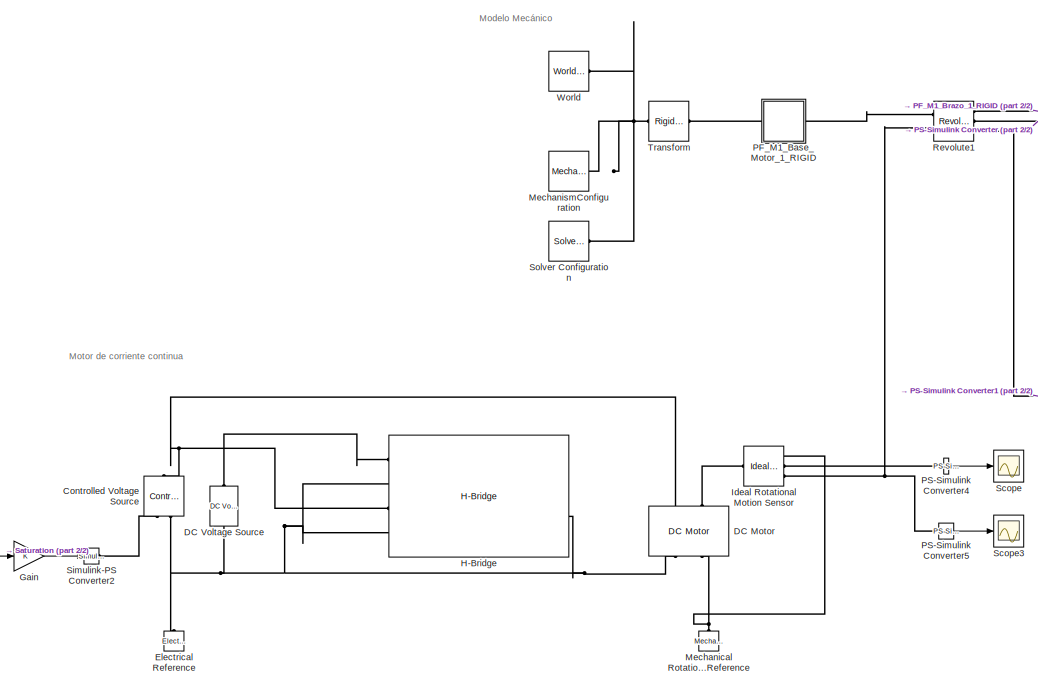
[diagram: root canvas - part 1/2, left side, full height]
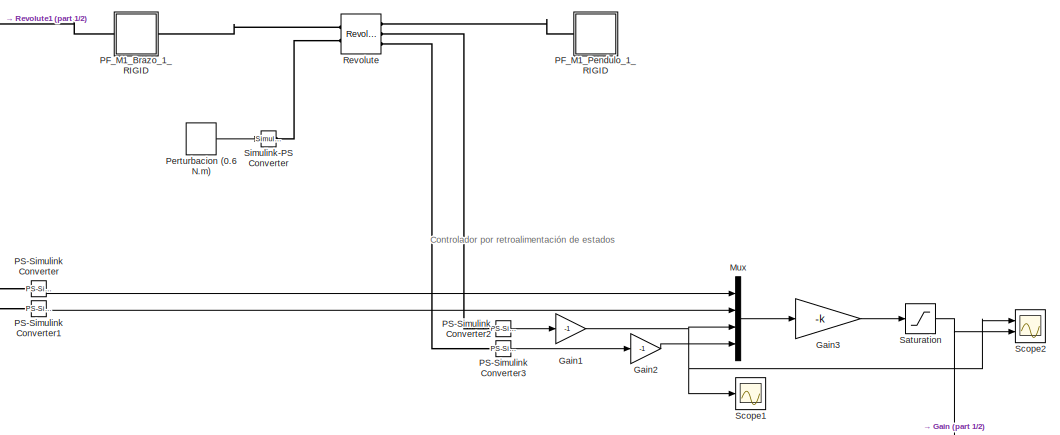
[diagram: root canvas - part 2/2, middle right region]
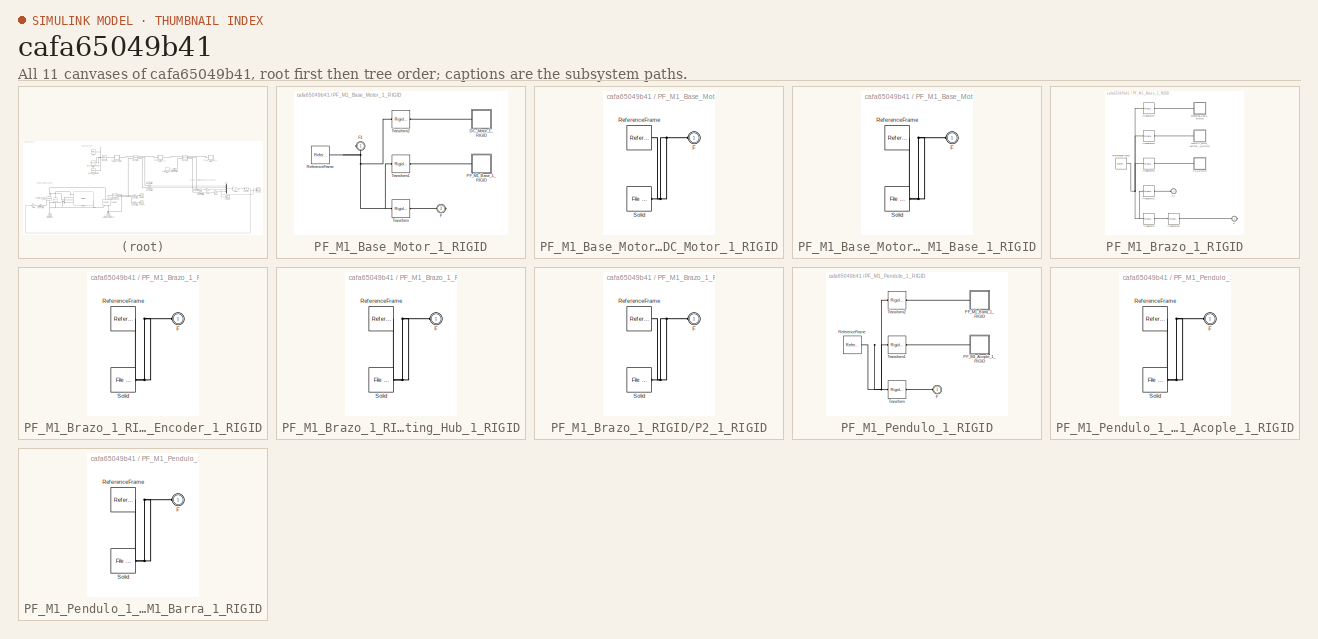
[diagram: thumbnail index - all 11 canvases of the model, root first then tree order]
MODEL slx_cafa65049b41
KIND model
CONFIG AbsTol = auto
CONFIG EnableMultiTasking = off
CONFIG FixedStep = auto
CONFIG MaxStep = 1e-3
CONFIG MinStep = auto
CONFIG RelTol = 1e-3
CONFIG SampleTimeConstraint = Unconstrained
CONFIG SolverName = VariableStepAuto
CONFIG StartTime = 0.0
CONFIG StopTime = 10
WORKSPACE source: external: MATLAB File  (data not in archive)
BLOCK [Reference] Controlled Voltage Source  REF=fl_lib/Electrical/Electrical Sources/Controlled Voltage
Source
  NameLocation = right
  Ports = [0, 0, 0, 0, 0, 1, 2]
  SourceBlock = fl_lib/Electrical/Electrical Sources/Controlled Voltage\nSource
  SourceProductBaseCode = SS
  SourceType = Controlled Voltage\nSource
BLOCK [Reference] DC Motor  REF=ee_lib/Electromechanical/Brushed Motors/DC Motor
  NameLocation = right
  Ports = [0, 0, 0, 0, 0, 2, 2]
  SourceBlock = ee_lib/Electromechanical/Brushed Motors/DC Motor
  SourceProductBaseCode = PS
  SourceType = DC Motor
BLOCK [Reference] DC Voltage Source  REF=ee_lib/Additional
Components/SPICE Sources/DC Voltage Source
  NameLocation = right
  Ports = [0, 0, 0, 0, 0, 1, 1]
  SourceBlock = ee_lib/Additional\nComponents/SPICE Sources/DC Voltage Source
  SourceProductBaseCode = PS
  SourceType = DC Voltage Source
BLOCK [Reference] Electrical Reference  REF=fl_lib/Electrical/Electrical Elements/Electrical Reference
  NameLocation = right
  Ports = [0, 0, 0, 0, 0, 1]
  SourceBlock = fl_lib/Electrical/Electrical Elements/Electrical Reference
  SourceProductBaseCode = SS
  SourceType = Electrical Reference
BLOCK [Gain] Gain
BLOCK [Gain] Gain1
  Gain = -1
BLOCK [Gain] Gain2
  Gain = -1
BLOCK [Gain] Gain3
  Gain = -k
  Multiplication = Matrix(K*u) (u vector)
BLOCK [Reference] H-Bridge  REF=ee_lib/Semiconductors &
Converters/Converters/H-Bridge
  Ports = [0, 0, 0, 0, 0, 4, 2]
  SourceBlock = ee_lib/Semiconductors &\nConverters/Converters/H-Bridge
  SourceProductBaseCode = PS
  SourceType = H-Bridge
BLOCK [Reference] Ideal Rotational Motion Sensor  REF=fl_lib/Mechanical/Mechanical Sensors/Ideal Rotational
Motion Sensor
  Ports = [0, 0, 0, 0, 0, 1, 3]
  SourceBlock = fl_lib/Mechanical/Mechanical Sensors/Ideal Rotational\nMotion Sensor
  SourceProductBaseCode = SS
  SourceType = Ideal Rotational\nMotion Sensor
BLOCK [Reference] Mechanical Rotational Reference  REF=fl_lib/Mechanical/Rotational Elements/Mechanical
Rotational Reference
  NameLocation = right
  Ports = [0, 0, 0, 0, 0, 1]
  SourceBlock = fl_lib/Mechanical/Rotational Elements/Mechanical\nRotational Reference
  SourceProductBaseCode = SS
  SourceType = Mechanical\nRotational Reference
BLOCK [Reference] MechanismConfiguration  REF=sm_lib/Utilities/Mechanism
Configuration
  Ports = [0, 0, 0, 0, 0, 0, 1]
  SourceBlock = sm_lib/Utilities/Mechanism\nConfiguration
  SourceProductBaseCode = MS
  SourceType = Mechanism\nConfiguration
BLOCK [Mux] Mux
  DisplayOption = bar
  Ports = [4, 1]
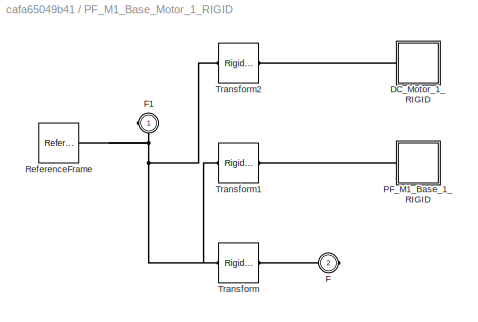
BLOCK [SubSystem] PF_M1_Base_Motor_1_RIGID
  Ports = [0, 0, 0, 0, 0, 1, 1]
  RequestExecContextInheritance = off
BLOCK [SubSystem] PF_M1_Base_Motor_1_RIGID/DC_Motor_1_RIGID
  Ports = [0, 0, 0, 0, 0, 1]
  RequestExecContextInheritance = off
BLOCK [PMIOPort] PF_M1_Base_Motor_1_RIGID/DC_Motor_1_RIGID/F
  Side = Left
BLOCK [Reference] PF_M1_Base_Motor_1_RIGID/DC_Motor_1_RIGID/ReferenceFrame  REF=sm_lib/Frames and
Transforms/Reference
Frame
  Ports = [0, 0, 0, 0, 0, 0, 1]
  SourceBlock = sm_lib/Frames and\nTransforms/Reference\nFrame
  SourceProductBaseCode = MS
  SourceType = Reference\nFrame
BLOCK [Reference] PF_M1_Base_Motor_1_RIGID/DC_Motor_1_RIGID/Solid  REF=sm_lib/Body Elements/File Solid
  Ports = [0, 0, 0, 0, 0, 0, 1]
  SourceBlock = sm_lib/Body Elements/File Solid
  SourceProductBaseCode = MS
  SourceType = File Solid
BLOCK [PMIOPort] PF_M1_Base_Motor_1_RIGID/F
  Port = 2
  Side = Right
BLOCK [PMIOPort] PF_M1_Base_Motor_1_RIGID/F1
  Side = Left
BLOCK [SubSystem] PF_M1_Base_Motor_1_RIGID/PF_M1_Base_1_RIGID
  Ports = [0, 0, 0, 0, 0, 1]
  RequestExecContextInheritance = off
BLOCK [PMIOPort] PF_M1_Base_Motor_1_RIGID/PF_M1_Base_1_RIGID/F
  Side = Left
BLOCK [Reference] PF_M1_Base_Motor_1_RIGID/PF_M1_Base_1_RIGID/ReferenceFrame  REF=sm_lib/Frames and
Transforms/Reference
Frame
  Ports = [0, 0, 0, 0, 0, 0, 1]
  SourceBlock = sm_lib/Frames and\nTransforms/Reference\nFrame
  SourceProductBaseCode = MS
  SourceType = Reference\nFrame
BLOCK [Reference] PF_M1_Base_Motor_1_RIGID/PF_M1_Base_1_RIGID/Solid  REF=sm_lib/Body Elements/File Solid
  Ports = [0, 0, 0, 0, 0, 0, 1]
  SourceBlock = sm_lib/Body Elements/File Solid
  SourceProductBaseCode = MS
  SourceType = File Solid
BLOCK [Reference] PF_M1_Base_Motor_1_RIGID/ReferenceFrame  REF=sm_lib/Frames and
Transforms/Reference
Frame
  Ports = [0, 0, 0, 0, 0, 0, 1]
  SourceBlock = sm_lib/Frames and\nTransforms/Reference\nFrame
  SourceProductBaseCode = MS
  SourceType = Reference\nFrame
BLOCK [Reference] PF_M1_Base_Motor_1_RIGID/Transform  REF=sm_lib/Frames and
Transforms/Rigid
Transform
  Ports = [0, 0, 0, 0, 0, 1, 1]
  SourceBlock = sm_lib/Frames and\nTransforms/Rigid\nTransform
  SourceProductBaseCode = MS
  SourceType = Rigid\nTransform
BLOCK [Reference] PF_M1_Base_Motor_1_RIGID/Transform1  REF=sm_lib/Frames and
Transforms/Rigid
Transform
  Ports = [0, 0, 0, 0, 0, 1, 1]
  SourceBlock = sm_lib/Frames and\nTransforms/Rigid\nTransform
  SourceProductBaseCode = MS
  SourceType = Rigid\nTransform
BLOCK [Reference] PF_M1_Base_Motor_1_RIGID/Transform2  REF=sm_lib/Frames and
Transforms/Rigid
Transform
  Ports = [0, 0, 0, 0, 0, 1, 1]
  SourceBlock = sm_lib/Frames and\nTransforms/Rigid\nTransform
  SourceProductBaseCode = MS
  SourceType = Rigid\nTransform
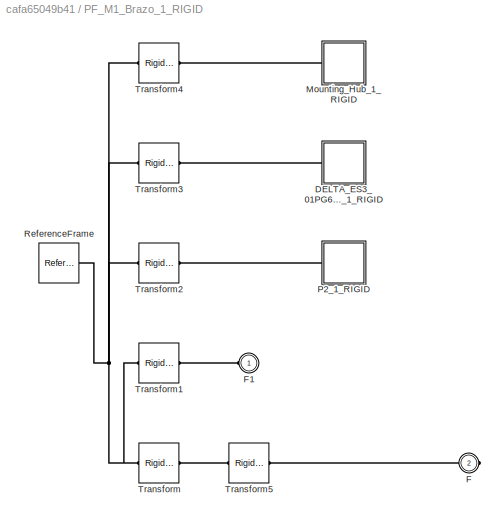
BLOCK [SubSystem] PF_M1_Brazo_1_RIGID
  Ports = [0, 0, 0, 0, 0, 1, 1]
  RequestExecContextInheritance = off
BLOCK [SubSystem] PF_M1_Brazo_1_RIGID/DELTA_ES3_01PG6941_Incremental_Rotary_Encoder_1_RIGID
  Ports = [0, 0, 0, 0, 0, 1]
  RequestExecContextInheritance = off
BLOCK [PMIOPort] PF_M1_Brazo_1_RIGID/DELTA_ES3_01PG6941_Incremental_Rotary_Encoder_1_RIGID/F
  Side = Left
BLOCK [Reference] PF_M1_Brazo_1_RIGID/DELTA_ES3_01PG6941_Incremental_Rotary_Encoder_1_RIGID/ReferenceFrame  REF=sm_lib/Frames and
Transforms/Reference
Frame
  Ports = [0, 0, 0, 0, 0, 0, 1]
  SourceBlock = sm_lib/Frames and\nTransforms/Reference\nFrame
  SourceProductBaseCode = MS
  SourceType = Reference\nFrame
BLOCK [Reference] PF_M1_Brazo_1_RIGID/DELTA_ES3_01PG6941_Incremental_Rotary_Encoder_1_RIGID/Solid  REF=sm_lib/Body Elements/File Solid
  Ports = [0, 0, 0, 0, 0, 0, 1]
  SourceBlock = sm_lib/Body Elements/File Solid
  SourceProductBaseCode = MS
  SourceType = File Solid
BLOCK [PMIOPort] PF_M1_Brazo_1_RIGID/F
  Port = 2
  Side = Right
BLOCK [PMIOPort] PF_M1_Brazo_1_RIGID/F1
  Side = Left
BLOCK [SubSystem] PF_M1_Brazo_1_RIGID/Mounting_Hub_1_RIGID
  Ports = [0, 0, 0, 0, 0, 1]
  RequestExecContextInheritance = off
BLOCK [PMIOPort] PF_M1_Brazo_1_RIGID/Mounting_Hub_1_RIGID/F
  Side = Left
BLOCK [Reference] PF_M1_Brazo_1_RIGID/Mounting_Hub_1_RIGID/ReferenceFrame  REF=sm_lib/Frames and
Transforms/Reference
Frame
  Ports = [0, 0, 0, 0, 0, 0, 1]
  SourceBlock = sm_lib/Frames and\nTransforms/Reference\nFrame
  SourceProductBaseCode = MS
  SourceType = Reference\nFrame
BLOCK [Reference] PF_M1_Brazo_1_RIGID/Mounting_Hub_1_RIGID/Solid  REF=sm_lib/Body Elements/File Solid
  Ports = [0, 0, 0, 0, 0, 0, 1]
  SourceBlock = sm_lib/Body Elements/File Solid
  SourceProductBaseCode = MS
  SourceType = File Solid
BLOCK [SubSystem] PF_M1_Brazo_1_RIGID/P2_1_RIGID
  Ports = [0, 0, 0, 0, 0, 1]
  RequestExecContextInheritance = off
BLOCK [PMIOPort] PF_M1_Brazo_1_RIGID/P2_1_RIGID/F
  Side = Left
BLOCK [Reference] PF_M1_Brazo_1_RIGID/P2_1_RIGID/ReferenceFrame  REF=sm_lib/Frames and
Transforms/Reference
Frame
  Ports = [0, 0, 0, 0, 0, 0, 1]
  SourceBlock = sm_lib/Frames and\nTransforms/Reference\nFrame
  SourceProductBaseCode = MS
  SourceType = Reference\nFrame
BLOCK [Reference] PF_M1_Brazo_1_RIGID/P2_1_RIGID/Solid  REF=sm_lib/Body Elements/File Solid
  Ports = [0, 0, 0, 0, 0, 0, 1]
  SourceBlock = sm_lib/Body Elements/File Solid
  SourceProductBaseCode = MS
  SourceType = File Solid
BLOCK [Reference] PF_M1_Brazo_1_RIGID/ReferenceFrame  REF=sm_lib/Frames and
Transforms/Reference
Frame
  Ports = [0, 0, 0, 0, 0, 0, 1]
  SourceBlock = sm_lib/Frames and\nTransforms/Reference\nFrame
  SourceProductBaseCode = MS
  SourceType = Reference\nFrame
BLOCK [Reference] PF_M1_Brazo_1_RIGID/Transform  REF=sm_lib/Frames and
Transforms/Rigid
Transform
  Ports = [0, 0, 0, 0, 0, 1, 1]
  SourceBlock = sm_lib/Frames and\nTransforms/Rigid\nTransform
  SourceProductBaseCode = MS
  SourceType = Rigid\nTransform
BLOCK [Reference] PF_M1_Brazo_1_RIGID/Transform1  REF=sm_lib/Frames and
Transforms/Rigid
Transform
  Ports = [0, 0, 0, 0, 0, 1, 1]
  SourceBlock = sm_lib/Frames and\nTransforms/Rigid\nTransform
  SourceProductBaseCode = MS
  SourceType = Rigid\nTransform
BLOCK [Reference] PF_M1_Brazo_1_RIGID/Transform2  REF=sm_lib/Frames and
Transforms/Rigid
Transform
  Ports = [0, 0, 0, 0, 0, 1, 1]
  SourceBlock = sm_lib/Frames and\nTransforms/Rigid\nTransform
  SourceProductBaseCode = MS
  SourceType = Rigid\nTransform
BLOCK [Reference] PF_M1_Brazo_1_RIGID/Transform3  REF=sm_lib/Frames and
Transforms/Rigid
Transform
  Ports = [0, 0, 0, 0, 0, 1, 1]
  SourceBlock = sm_lib/Frames and\nTransforms/Rigid\nTransform
  SourceProductBaseCode = MS
  SourceType = Rigid\nTransform
BLOCK [Reference] PF_M1_Brazo_1_RIGID/Transform4  REF=sm_lib/Frames and
Transforms/Rigid
Transform
  Ports = [0, 0, 0, 0, 0, 1, 1]
  SourceBlock = sm_lib/Frames and\nTransforms/Rigid\nTransform
  SourceProductBaseCode = MS
  SourceType = Rigid\nTransform
BLOCK [Reference] PF_M1_Brazo_1_RIGID/Transform5  REF=sm_lib/Frames and
Transforms/Rigid
Transform
  Ports = [0, 0, 0, 0, 0, 1, 1]
  SourceBlock = sm_lib/Frames and\nTransforms/Rigid\nTransform
  SourceProductBaseCode = MS
  SourceType = Rigid\nTransform
BLOCK [SubSystem] PF_M1_Pendulo_1_RIGID
  Ports = [0, 0, 0, 0, 0, 1]
  RequestExecContextInheritance = off
BLOCK [PMIOPort] PF_M1_Pendulo_1_RIGID/F
  Side = Left
BLOCK [SubSystem] PF_M1_Pendulo_1_RIGID/PF_M1_Acople_1_RIGID
  Ports = [0, 0, 0, 0, 0, 1]
  RequestExecContextInheritance = off
BLOCK [PMIOPort] PF_M1_Pendulo_1_RIGID/PF_M1_Acople_1_RIGID/F
  Side = Left
BLOCK [Reference] PF_M1_Pendulo_1_RIGID/PF_M1_Acople_1_RIGID/ReferenceFrame  REF=sm_lib/Frames and
Transforms/Reference
Frame
  Ports = [0, 0, 0, 0, 0, 0, 1]
  SourceBlock = sm_lib/Frames and\nTransforms/Reference\nFrame
  SourceProductBaseCode = MS
  SourceType = Reference\nFrame
BLOCK [Reference] PF_M1_Pendulo_1_RIGID/PF_M1_Acople_1_RIGID/Solid  REF=sm_lib/Body Elements/File Solid
  Ports = [0, 0, 0, 0, 0, 0, 1]
  SourceBlock = sm_lib/Body Elements/File Solid
  SourceProductBaseCode = MS
  SourceType = File Solid
BLOCK [SubSystem] PF_M1_Pendulo_1_RIGID/PF_M1_Barra_1_RIGID
  Ports = [0, 0, 0, 0, 0, 1]
  RequestExecContextInheritance = off
BLOCK [PMIOPort] PF_M1_Pendulo_1_RIGID/PF_M1_Barra_1_RIGID/F
  Side = Left
BLOCK [Reference] PF_M1_Pendulo_1_RIGID/PF_M1_Barra_1_RIGID/ReferenceFrame  REF=sm_lib/Frames and
Transforms/Reference
Frame
  Ports = [0, 0, 0, 0, 0, 0, 1]
  SourceBlock = sm_lib/Frames and\nTransforms/Reference\nFrame
  SourceProductBaseCode = MS
  SourceType = Reference\nFrame
BLOCK [Reference] PF_M1_Pendulo_1_RIGID/PF_M1_Barra_1_RIGID/Solid  REF=sm_lib/Body Elements/File Solid
  Ports = [0, 0, 0, 0, 0, 0, 1]
  SourceBlock = sm_lib/Body Elements/File Solid
  SourceProductBaseCode = MS
  SourceType = File Solid
BLOCK [Reference] PF_M1_Pendulo_1_RIGID/ReferenceFrame  REF=sm_lib/Frames and
Transforms/Reference
Frame
  Ports = [0, 0, 0, 0, 0, 0, 1]
  SourceBlock = sm_lib/Frames and\nTransforms/Reference\nFrame
  SourceProductBaseCode = MS
  SourceType = Reference\nFrame
BLOCK [Reference] PF_M1_Pendulo_1_RIGID/Transform  REF=sm_lib/Frames and
Transforms/Rigid
Transform
  Ports = [0, 0, 0, 0, 0, 1, 1]
  SourceBlock = sm_lib/Frames and\nTransforms/Rigid\nTransform
  SourceProductBaseCode = MS
  SourceType = Rigid\nTransform
BLOCK [Reference] PF_M1_Pendulo_1_RIGID/Transform1  REF=sm_lib/Frames and
Transforms/Rigid
Transform
  Ports = [0, 0, 0, 0, 0, 1, 1]
  SourceBlock = sm_lib/Frames and\nTransforms/Rigid\nTransform
  SourceProductBaseCode = MS
  SourceType = Rigid\nTransform
BLOCK [Reference] PF_M1_Pendulo_1_RIGID/Transform2  REF=sm_lib/Frames and
Transforms/Rigid
Transform
  Ports = [0, 0, 0, 0, 0, 1, 1]
  SourceBlock = sm_lib/Frames and\nTransforms/Rigid\nTransform
  SourceProductBaseCode = MS
  SourceType = Rigid\nTransform
BLOCK [Reference] PS-Simulink Converter  REF=nesl_utility/PS-Simulink
Converter
  Ports = [0, 1, 0, 0, 0, 1]
  SourceBlock = nesl_utility/PS-Simulink\nConverter
  SourceProductBaseCode = PW,SS
  SourceType = PS-Simulink\nConverter
BLOCK [Reference] PS-Simulink Converter1  REF=nesl_utility/PS-Simulink
Converter
  Ports = [0, 1, 0, 0, 0, 1]
  SourceBlock = nesl_utility/PS-Simulink\nConverter
  SourceProductBaseCode = PW,SS
  SourceType = PS-Simulink\nConverter
BLOCK [Reference] PS-Simulink Converter2  REF=nesl_utility/PS-Simulink
Converter
  Ports = [0, 1, 0, 0, 0, 1]
  SourceBlock = nesl_utility/PS-Simulink\nConverter
  SourceProductBaseCode = PW,SS
  SourceType = PS-Simulink\nConverter
BLOCK [Reference] PS-Simulink Converter3  REF=nesl_utility/PS-Simulink
Converter
  Ports = [0, 1, 0, 0, 0, 1]
  SourceBlock = nesl_utility/PS-Simulink\nConverter
  SourceProductBaseCode = PW,SS
  SourceType = PS-Simulink\nConverter
BLOCK [Reference] PS-Simulink Converter4  REF=nesl_utility/PS-Simulink
Converter
  Ports = [0, 1, 0, 0, 0, 1]
  SourceBlock = nesl_utility/PS-Simulink\nConverter
  SourceProductBaseCode = PW,SS
  SourceType = PS-Simulink\nConverter
BLOCK [Reference] PS-Simulink Converter5  REF=nesl_utility/PS-Simulink
Converter
  Ports = [0, 1, 0, 0, 0, 1]
  SourceBlock = nesl_utility/PS-Simulink\nConverter
  SourceProductBaseCode = PW,SS
  SourceType = PS-Simulink\nConverter
BLOCK [DiscretePulseGenerator] Perturbacion (0.6 N.m)
  Amplitude = 4
  Period = 10
  PhaseDelay = 5
  Ports = [0, 1]
  PulseType = Time based
  PulseWidth = 0.01
BLOCK [Reference] Revolute  REF=sm_lib/Joints/Revolute Joint
  Ports = [0, 0, 0, 0, 0, 2, 3]
  SourceBlock = sm_lib/Joints/Revolute Joint
  SourceProductBaseCode = MS
  SourceType = Revolute Joint
BLOCK [Reference] Revolute1  REF=sm_lib/Joints/Revolute Joint
  Ports = [0, 0, 0, 0, 0, 2, 3]
  SourceBlock = sm_lib/Joints/Revolute Joint
  SourceProductBaseCode = MS
  SourceType = Revolute Joint
BLOCK [Saturate] Saturation
  LowerLimit = -24
  UpperLimit = 24
BLOCK [Scope] Scope
  Floating = off
  NumInputPorts = 1
  Ports = [1]
  ScopeSpecificationString = Simulink.scopes.TimeScopeBlockCfg('CurrentConfiguration', extmgr.ConfigurationSet(extmgr.Configuration('Core','General UI',true),extmgr.Configuration('Core','Source UI',true),extmgr.Configuration('Sources','WiredSimulink',true),extmgr.Configuration('Visuals','Time Domain',true,'SerializedDisplays',{struct('MinYLimReal','-163.05303','MaxYLimReal','164.08233','YLabelReal','','MinYLimMag',' 0.00000',...<+1400ch>
BLOCK [Scope] Scope1
  Floating = off
  NumInputPorts = 1
  Ports = [1]
  ScopeSpecificationString = Simulink.scopes.TimeScopeBlockCfg('CurrentConfiguration', extmgr.ConfigurationSet(extmgr.Configuration('Core','General UI',true,'FigureColor',[1 1 1]),extmgr.Configuration('Core','Source UI',true),extmgr.Configuration('Sources','WiredSimulink',true,'DataLoggingVariableName','ScopeData1'),extmgr.Configuration('Visuals','Time Domain',true,'SerializedDisplays',{struct('MinYLimReal','-0.59983','MaxYLi...<+1621ch>
BLOCK [Scope] Scope2
  Floating = off
  NumInputPorts = 2
  Ports = [2]
  ScopeSpecificationString = Simulink.scopes.TimeScopeBlockCfg('CurrentConfiguration', extmgr.ConfigurationSet(extmgr.Configuration('Core','General UI',true,'FigureColor',[1 1 1]),extmgr.Configuration('Core','Source UI',true),extmgr.Configuration('Sources','WiredSimulink',true,'DataLoggingVariableName','ScopeData2'),extmgr.Configuration('Visuals','Time Domain',true,'TimeAxisLabels','All','SerializedDisplays',{struct('MinYLimR...<+2309ch>
BLOCK [Scope] Scope3
  Floating = off
  NumInputPorts = 1
  Ports = [1]
  ScopeSpecificationString = Simulink.scopes.TimeScopeBlockCfg('CurrentConfiguration', extmgr.ConfigurationSet(extmgr.Configuration('Core','General UI',true),extmgr.Configuration('Core','Source UI',true),extmgr.Configuration('Sources','WiredSimulink',true,'DataLoggingVariableName','ScopeData3'),extmgr.Configuration('Visuals','Time Domain',true,'SerializedDisplays',{struct('MinYLimReal','-3.00298','MaxYLimReal','2.94202','YLab...<+1425ch>
BLOCK [Reference] Simulink-PS Converter  REF=nesl_utility/Simulink-PS
Converter
  Ports = [1, 0, 0, 0, 0, 0, 1]
  SourceBlock = nesl_utility/Simulink-PS\nConverter
  SourceProductBaseCode = PW,SS
  SourceType = Simulink-PS\nConverter
BLOCK [Reference] Simulink-PS Converter2  REF=nesl_utility/Simulink-PS
Converter
  Ports = [1, 0, 0, 0, 0, 0, 1]
  SourceBlock = nesl_utility/Simulink-PS\nConverter
  SourceProductBaseCode = PW,SS
  SourceType = Simulink-PS\nConverter
BLOCK [Reference] Solver Configuration  REF=nesl_utility/Solver
Configuration
  Ports = [0, 0, 0, 0, 0, 0, 1]
  SourceBlock = nesl_utility/Solver\nConfiguration
  SourceProductBaseCode = PW,SS
  SourceType = Solver\nConfiguration
BLOCK [Reference] Transform  REF=sm_lib/Frames and
Transforms/Rigid
Transform
  Ports = [0, 0, 0, 0, 0, 1, 1]
  SourceBlock = sm_lib/Frames and\nTransforms/Rigid\nTransform
  SourceProductBaseCode = MS
  SourceType = Rigid\nTransform
BLOCK [Reference] World  REF=sm_lib/Frames and
Transforms/World Frame
  Ports = [0, 0, 0, 0, 0, 0, 1]
  SourceBlock = sm_lib/Frames and\nTransforms/World Frame
  SourceProductBaseCode = MS
  SourceType = World Frame
ANNOTATION (root): Controlador por retroalimentación de estados
ANNOTATION (root): Modelo Mecánico
ANNOTATION (root): Motor de corriente continua
NET Gain1:1 -> Mux:3, Scope1:1, Scope2:1
LINE Gain2:1 -> Mux:4
LINE Gain3:1 -> Saturation:1
LINE Gain:1 -> Simulink-PS Converter2:1
LINE Mux:1 -> Gain3:1
LINE PS-Simulink Converter1:1 -> Mux:2
LINE PS-Simulink Converter2:1 -> Gain1:1
LINE PS-Simulink Converter3:1 -> Gain2:1
LINE PS-Simulink Converter4:1 -> Scope:1
LINE PS-Simulink Converter5:1 -> Scope3:1
LINE PS-Simulink Converter:1 -> Mux:1
LINE Perturbacion (0.6 N.m):1 -> Simulink-PS Converter:1
NET Saturation:1 -> Gain:1, Scope2:2
PNET net1: Controlled Voltage Source:LConn1 -- DC Motor:LConn1 -- H-Bridge:LConn3
PLINE Controlled Voltage Source:RConn1 -- Simulink-PS Converter2:RConn1
PNET net2: Controlled Voltage Source:RConn2 -- DC Motor:RConn1 -- DC Voltage Source:RConn1 -- Electrical Reference:LConn1 -- H-Bridge:LConn2 -- H-Bridge:LConn4 -- H-Bridge:RConn2
PLINE DC Motor:LConn2 -- Ideal Rotational Motion Sensor:LConn1
PNET net3: DC Motor:RConn2 -- Ideal Rotational Motion Sensor:RConn1 -- Mechanical Rotational Reference:LConn1
PLINE DC Voltage Source:LConn1 -- H-Bridge:LConn1
PLINE Ideal Rotational Motion Sensor:RConn2 -- PS-Simulink Converter4:LConn1
PNET net4: Ideal Rotational Motion Sensor:RConn3 -- PS-Simulink Converter5:LConn1 -- Revolute1:LConn2
PNET net5: MechanismConfiguration:RConn1 -- Solver Configuration:RConn1 -- Transform:LConn1 -- World:RConn1
PNET net6: PF_M1_Base_Motor_1_RIGID/DC_Motor_1_RIGID/F:RConn1 -- PF_M1_Base_Motor_1_RIGID/DC_Motor_1_RIGID/ReferenceFrame:RConn1 -- PF_M1_Base_Motor_1_RIGID/DC_Motor_1_RIGID/Solid:RConn1
PLINE PF_M1_Base_Motor_1_RIGID/DC_Motor_1_RIGID:LConn1 -- PF_M1_Base_Motor_1_RIGID/Transform2:RConn1
PNET net7: PF_M1_Base_Motor_1_RIGID/F1:RConn1 -- PF_M1_Base_Motor_1_RIGID/ReferenceFrame:RConn1 -- PF_M1_Base_Motor_1_RIGID/Transform1:LConn1 -- PF_M1_Base_Motor_1_RIGID/Transform2:LConn1 -- PF_M1_Base_Motor_1_RIGID/Transform:LConn1
PLINE PF_M1_Base_Motor_1_RIGID/F:RConn1 -- PF_M1_Base_Motor_1_RIGID/Transform:RConn1
PNET net8: PF_M1_Base_Motor_1_RIGID/PF_M1_Base_1_RIGID/F:RConn1 -- PF_M1_Base_Motor_1_RIGID/PF_M1_Base_1_RIGID/ReferenceFrame:RConn1 -- PF_M1_Base_Motor_1_RIGID/PF_M1_Base_1_RIGID/Solid:RConn1
PLINE PF_M1_Base_Motor_1_RIGID/PF_M1_Base_1_RIGID:LConn1 -- PF_M1_Base_Motor_1_RIGID/Transform1:RConn1
PLINE PF_M1_Base_Motor_1_RIGID:LConn1 -- Transform:RConn1
PLINE PF_M1_Base_Motor_1_RIGID:RConn1 -- Revolute1:LConn1
PNET net9: PF_M1_Brazo_1_RIGID/DELTA_ES3_01PG6941_Incremental_Rotary_Encoder_1_RIGID/F:RConn1 -- PF_M1_Brazo_1_RIGID/DELTA_ES3_01PG6941_Incremental_Rotary_Encoder_1_RIGID/ReferenceFrame:RConn1 -- PF_M1_Brazo_1_RIGID/DELTA_ES3_01PG6941_Incremental_Rotary_Encoder_1_RIGID/Solid:RConn1
PLINE PF_M1_Brazo_1_RIGID/DELTA_ES3_01PG6941_Incremental_Rotary_Encoder_1_RIGID:LConn1 -- PF_M1_Brazo_1_RIGID/Transform3:RConn1
PLINE PF_M1_Brazo_1_RIGID/F1:RConn1 -- PF_M1_Brazo_1_RIGID/Transform1:RConn1
PLINE PF_M1_Brazo_1_RIGID/F:RConn1 -- PF_M1_Brazo_1_RIGID/Transform5:RConn1
PNET net10: PF_M1_Brazo_1_RIGID/Mounting_Hub_1_RIGID/F:RConn1 -- PF_M1_Brazo_1_RIGID/Mounting_Hub_1_RIGID/ReferenceFrame:RConn1 -- PF_M1_Brazo_1_RIGID/Mounting_Hub_1_RIGID/Solid:RConn1
PLINE PF_M1_Brazo_1_RIGID/Mounting_Hub_1_RIGID:LConn1 -- PF_M1_Brazo_1_RIGID/Transform4:RConn1
PNET net11: PF_M1_Brazo_1_RIGID/P2_1_RIGID/F:RConn1 -- PF_M1_Brazo_1_RIGID/P2_1_RIGID/ReferenceFrame:RConn1 -- PF_M1_Brazo_1_RIGID/P2_1_RIGID/Solid:RConn1
PLINE PF_M1_Brazo_1_RIGID/P2_1_RIGID:LConn1 -- PF_M1_Brazo_1_RIGID/Transform2:RConn1
PNET net12: PF_M1_Brazo_1_RIGID/ReferenceFrame:RConn1 -- PF_M1_Brazo_1_RIGID/Transform1:LConn1 -- PF_M1_Brazo_1_RIGID/Transform2:LConn1 -- PF_M1_Brazo_1_RIGID/Transform3:LConn1 -- PF_M1_Brazo_1_RIGID/Transform4:LConn1 -- PF_M1_Brazo_1_RIGID/Transform:LConn1
PLINE PF_M1_Brazo_1_RIGID/Transform5:LConn1 -- PF_M1_Brazo_1_RIGID/Transform:RConn1
PLINE PF_M1_Brazo_1_RIGID:LConn1 -- Revolute1:RConn1
PLINE PF_M1_Brazo_1_RIGID:RConn1 -- Revolute:LConn1
PLINE PF_M1_Pendulo_1_RIGID/F:RConn1 -- PF_M1_Pendulo_1_RIGID/Transform:RConn1
PNET net13: PF_M1_Pendulo_1_RIGID/PF_M1_Acople_1_RIGID/F:RConn1 -- PF_M1_Pendulo_1_RIGID/PF_M1_Acople_1_RIGID/ReferenceFrame:RConn1 -- PF_M1_Pendulo_1_RIGID/PF_M1_Acople_1_RIGID/Solid:RConn1
PLINE PF_M1_Pendulo_1_RIGID/PF_M1_Acople_1_RIGID:LConn1 -- PF_M1_Pendulo_1_RIGID/Transform1:RConn1
PNET net14: PF_M1_Pendulo_1_RIGID/PF_M1_Barra_1_RIGID/F:RConn1 -- PF_M1_Pendulo_1_RIGID/PF_M1_Barra_1_RIGID/ReferenceFrame:RConn1 -- PF_M1_Pendulo_1_RIGID/PF_M1_Barra_1_RIGID/Solid:RConn1
PLINE PF_M1_Pendulo_1_RIGID/PF_M1_Barra_1_RIGID:LConn1 -- PF_M1_Pendulo_1_RIGID/Transform2:RConn1
PNET net15: PF_M1_Pendulo_1_RIGID/ReferenceFrame:RConn1 -- PF_M1_Pendulo_1_RIGID/Transform1:LConn1 -- PF_M1_Pendulo_1_RIGID/Transform2:LConn1 -- PF_M1_Pendulo_1_RIGID/Transform:LConn1
PLINE PF_M1_Pendulo_1_RIGID:LConn1 -- Revolute:RConn1
PLINE PS-Simulink Converter1:LConn1 -- Revolute1:RConn3
PLINE PS-Simulink Converter2:LConn1 -- Revolute:RConn2
PLINE PS-Simulink Converter3:LConn1 -- Revolute:RConn3
PLINE PS-Simulink Converter:LConn1 -- Revolute1:RConn2
PLINE Revolute:LConn2 -- Simulink-PS Converter:RConn1
note: NET lines group one-source signal fan-out (src -> all destinations, sorted); 1:1 wires keep LINE; PNET lines group multi-terminal physical nets as a canonical sorted terminal list (undirected conserving connections); 2-terminal nets keep the pairwise PLINE form
